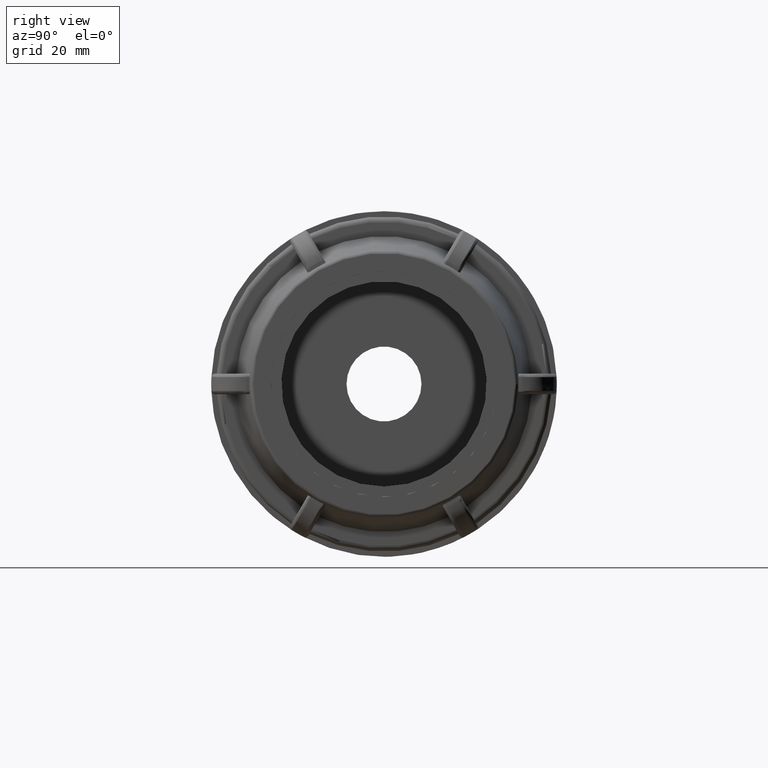
[diagram: clean part render]
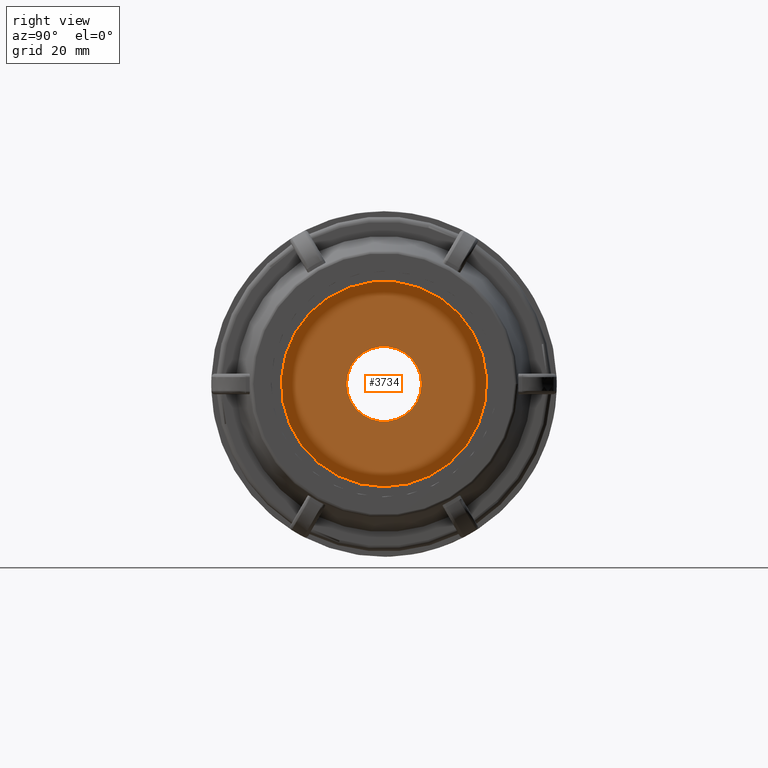
[diagram: same view with one face highlighted and labeled with its STEP entity id]
A machine part, right view. The second image highlights one B-rep face of the part: STEP entity #3734.
In plain terms, the highlighted planar face has unit normal (-1, -0, 0).
Its self-contained STEP definition (entity closure, byte-faithful):
#197=FACE_BOUND('',#589,.T.);
#236=PLANE('',#4020);
#348=FACE_OUTER_BOUND('',#588,.T.);
#588=EDGE_LOOP('',(#2649));
#589=EDGE_LOOP('',(#2650));
#1300=CIRCLE('',#4019,31.5);
#1301=CIRCLE('',#4021,11.5);
#1559=VERTEX_POINT('',#5708);
#1560=VERTEX_POINT('',#5711);
#1972=EDGE_CURVE('',#1559,#1559,#1300,.T.);
#1973=EDGE_CURVE('',#1560,#1560,#1301,.T.);
#2649=ORIENTED_EDGE('',*,*,#1972,.F.);
#2650=ORIENTED_EDGE('',*,*,#1973,.F.);
#3734=ADVANCED_FACE('',(#348,#197),#236,.F.);
#4019=AXIS2_PLACEMENT_3D('',#5709,#4617,#4618);
#4020=AXIS2_PLACEMENT_3D('',#5710,#4619,#4620);
#4021=AXIS2_PLACEMENT_3D('',#5712,#4621,#4622);
#4617=DIRECTION('center_axis',(-1.,-3.06161699786838E-16,0.));
#4618=DIRECTION('ref_axis',(0.,0.,1.));
#4619=DIRECTION('center_axis',(-1.,-3.06161699786838E-16,0.));
#4620=DIRECTION('ref_axis',(0.,0.,1.));
#4621=DIRECTION('center_axis',(1.,3.06161699786838E-16,0.));
#4622=DIRECTION('ref_axis',(-4.64848907677115E-16,1.,0.));
#5708=CARTESIAN_POINT('',(1.5,4.31687996699441E-15,-31.5));
#5709=CARTESIAN_POINT('Origin',(1.5,4.59242549680245E-16,0.));
#5710=CARTESIAN_POINT('Origin',(1.5,1.71240318586515E-15,2.20121247197221E-15));
#5711=CARTESIAN_POINT('',(1.50000000000001,-11.5,-1.40834381901946E-15));
#5712=CARTESIAN_POINT('Origin',(1.5,4.59242549680257E-16,0.));